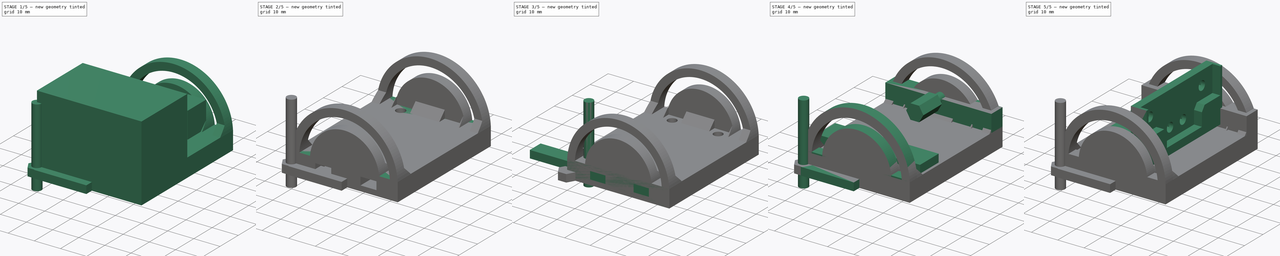
[diagram: build sequence overview — one tinted view per stage of 5, left to right]
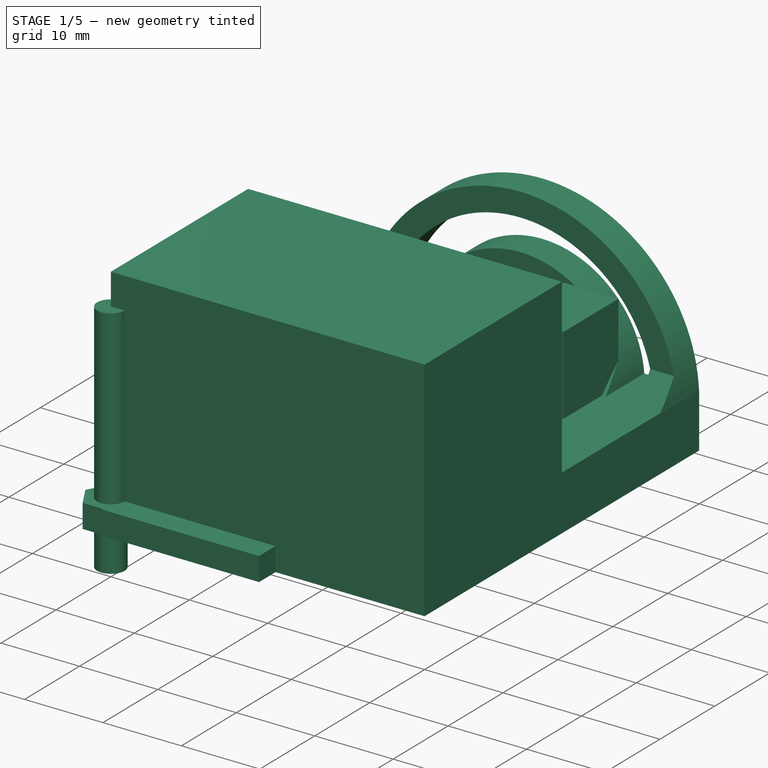
[diagram: stage 1 of 5 — iso view after this stage's code; geometry added in this stage tinted green]
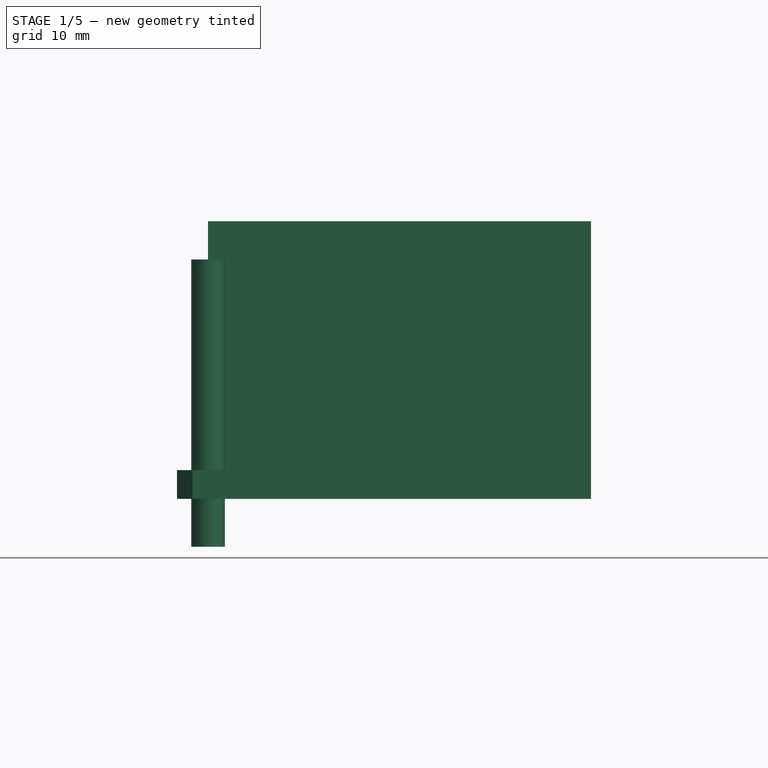
[diagram: stage 1 of 5 — front view after this stage's code; geometry added in this stage tinted green]
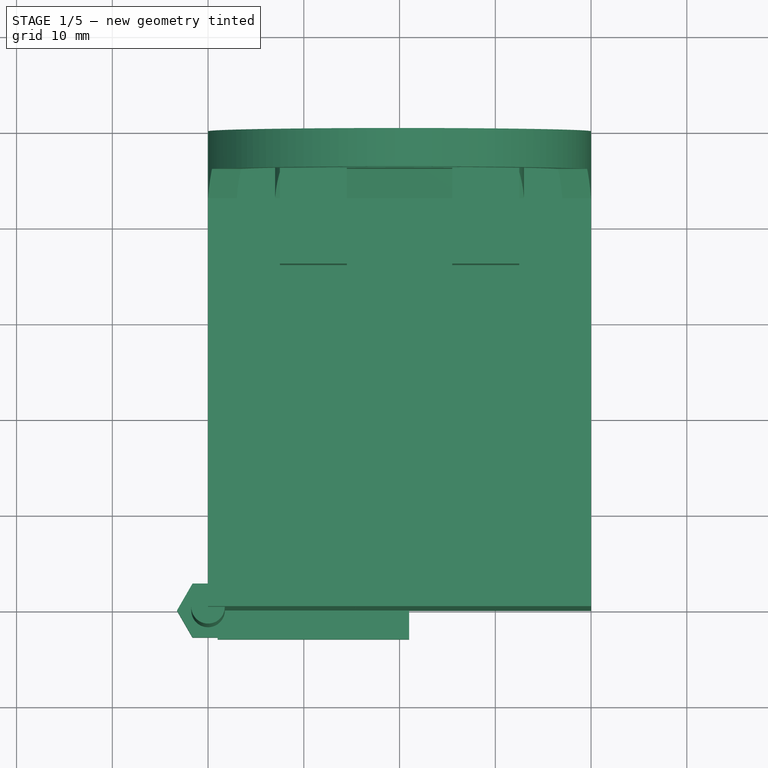
[diagram: stage 1 of 5 — top view after this stage's code; geometry added in this stage tinted green]
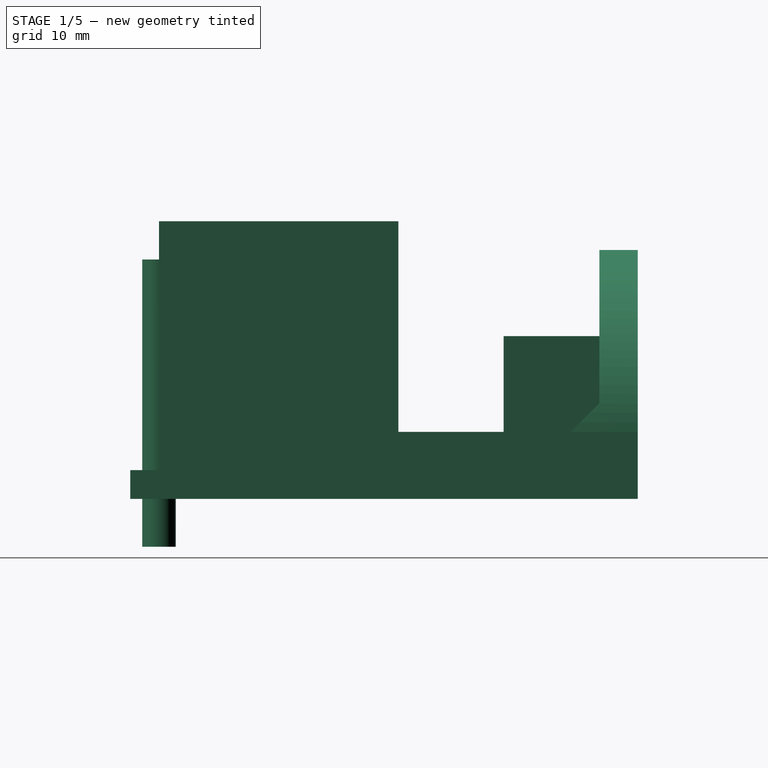
[diagram: stage 1 of 5 — right view after this stage's code; geometry added in this stage tinted green]
FCSTD DOCUMENT  (FreeCAD 0.19R14555 (Git shallow))
Label: Soporte camara
License: All rights reserved
LicenseURL: http://en.wikipedia.org/wiki/All_rights_reserved
objects: Part::Cut×36, Part::Box×30, Part::Prism×23, Part::Cylinder×23, Part::MultiFuse×21, Sketcher::SketchObject×3, PartDesign::Pad×3, PartDesign::Body×3, Part::Refine×3, App::DocumentObjectGroup×2, Part::Feature×2, PartDesign::FeatureBase×1, Part::Chamfer×1
note: 152 computed .brp shape members not serialized (recipe doc carries the construction recipe); baked Part::Feature solids carry a one-line shape summary decoded from their .brp

FEATURE [Part::Box] Box014  label="Cubo014"
  AttacherType = Attacher::AttachEngine3D
  Height = 7
  Length = 40
  Width = 50
FEATURE [Sketcher::SketchObject] Sketch002
  FullyConstrained = true
  MapMode = 5
  Placement = pos=(0,0,0) rot=(1,0,0;1.5708rad)
  Support = -> [XZ_Plane002]
  sketch-geometry (10):
    g0: LineSegment StartX=0 StartY=2.5e-15 StartZ=0 EndX=10 EndY=2.5e-15 EndZ=0
    g1: LineSegment StartX=30 StartY=-3.97921e-07 StartZ=0 EndX=40 EndY=-3.97921e-07 EndZ=0
    g2: ArcOfCircle CenterX=20 CenterY=-3.97921e-07 CenterZ=0 NormalX=0 NormalY=0 NormalZ=1 AngleXU=0 Radius=20 StartAngle=0 EndAngle=3.14159
    g3: ArcOfCircle CenterX=20 CenterY=-3.97921e-07 CenterZ=0 NormalX=0 NormalY=0 NormalZ=1 AngleXU=0 Radius=10 StartAngle=0 EndAngle=3.14159
    g4: LineSegment StartX=20 StartY=-3.97921e-07 StartZ=0 EndX=30 EndY=-3.97921e-07 EndZ=0
    g5: ArcOfCircle CenterX=20 CenterY=-3.97921e-07 CenterZ=0 NormalX=0 NormalY=0 NormalZ=1 AngleXU=0 Radius=17.0294 StartAngle=0.0587558 EndAngle=3.08284
    g6: ArcOfCircle CenterX=20 CenterY=-3.97921e-07 CenterZ=0 NormalX=0 NormalY=0 NormalZ=1 AngleXU=0 Radius=13.0384 StartAngle=0.0767719 EndAngle=3.06482
    g7: LineSegment StartX=3 StartY=1 StartZ=0 EndX=7 EndY=1 EndZ=0
    g8: LineSegment StartX=37 StartY=1 StartZ=0 EndX=33 EndY=1 EndZ=0
    g9: LineSegment StartX=20 StartY=-3.97921e-07 StartZ=0 EndX=10 EndY=2.5e-15 EndZ=0
  constraints (28):
    c: Horizontal(g1)
    c: Horizontal(g0)
    c: Equal(g0,g1)
    c: Coincident(g2,g0)
    c: Coincident(g3,g2)
    c: Coincident(g3,g0)
    c: Coincident(g3,g1)
    c: Coincident(g1,g2)
    c: Coincident(g4,g2)
    c: Coincident(g4,g1)
    c: Horizontal(g4)
    c: Coincident(g5,g2)
    c: Coincident(g6,g2)
    c: Coincident(g7,g5)
    c: Coincident(g7,g6)
    c: Coincident(g8,g5)
    c: Coincident(g8,g6)
    c: Horizontal(g8)
    c: Horizontal(g7)
    c: Equal(g7,g8)
    c: Radius(g2) = 20
    c: DistanceX(g7,g7) = 4
    c: DistanceX(g6,g0) = 3
    c: DistanceX(g4,g4) = 10
    c: DistanceY(g0,g6) = 1
    c: Coincident(g0,g-1)
    c: Coincident(g9,g2)
    c: Coincident(g9,g0)
FEATURE [PartDesign::Pad] Pad002002
  Direction = (1,1,1)
  Length = 4
  Length2 = 100
  Placement = pos=(0,0,0) rot=(1,0,0;1.5708rad)
  Profile = -> Sketch002
  Type = 0
FEATURE [PartDesign::Body] Body002
  Group = -> [Sketch002,Pad002002]
  Origin = -> Origin002
  Tip = -> Pad002002
FEATURE [Part::Refine] Pad002002001
  Placement = pos=(0,4,6) rot=(0,0,1;0rad)
  Source = -> Pad002002
FEATURE [Part::Feature] Pad002002001001
  Placement = pos=(0,50,6) rot=(0,0,1;0rad)
  shape: bbox 40 x 4 x 20 mm, 9 faces (baked)
FEATURE [Part::MultiFuse] Fusion012
  Shapes = -> [Pad002002001001,Pad002002001,Box014]
FEATURE [Part::Prism] Prism015  label="Prisma015"
  AttacherType = Attacher::AttachEngine3D
  Circumradius = 3.25
  FirstAngle = 0
  Height = 3
  Polygon = 6
  SecondAngle = 0
FEATURE [Part::Cylinder] Cylinder015  label="Cilindro015"
  Angle = 360
  AttacherType = Attacher::AttachEngine3D
  Height = 30
  Placement = pos=(0,0,-5) rot=(0,0,1;0rad)
  Radius = 1.75
FEATURE [Part::Box] Box015  label="Cubo015"
  AttacherType = Attacher::AttachEngine3D
  Height = 3
  Length = 20
  Placement = pos=(1,-3,0) rot=(0,0,1;0rad)
  Width = 6
FEATURE [Part::MultiFuse] Fusion013
  Placement = pos=(12,7,2) rot=(0,0,-1;1.5708rad)
  Shapes = -> [Prism015,Cylinder015,Box015]
FEATURE [Part::Prism] Prism016  label="Prisma016"
  AttacherType = Attacher::AttachEngine3D
  Circumradius = 3.25
  FirstAngle = 0
  Height = 3
  Polygon = 6
  SecondAngle = 0
FEATURE [Part::Box] Box016  label="Cubo016"
  AttacherType = Attacher::AttachEngine3D
  Height = 3
  Length = 20
  Placement = pos=(1,-3,0) rot=(0,0,1;0rad)
  Width = 6
FEATURE [Part::Cylinder] Cylinder016  label="Cilindro016"
  Angle = 360
  AttacherType = Attacher::AttachEngine3D
  Height = 30
  Placement = pos=(0,0,-5) rot=(0,0,1;0rad)
  Radius = 1.75
FEATURE [Part::Prism] Prism017  label="Prisma017"
  AttacherType = Attacher::AttachEngine3D
  Circumradius = 3.25
  FirstAngle = 0
  Height = 3
  Polygon = 6
  SecondAngle = 0
FEATURE [Part::Box] Box017  label="Cubo017"
  AttacherType = Attacher::AttachEngine3D
  Height = 3
  Length = 20
  Placement = pos=(1,-3,0) rot=(0,0,1;0rad)
  Width = 6
FEATURE [Part::Cylinder] Cylinder017  label="Cilindro017"
  Angle = 360
  AttacherType = Attacher::AttachEngine3D
  Height = 30
  Placement = pos=(0,0,-5) rot=(0,0,1;0rad)
  Radius = 1.75
FEATURE [Part::MultiFuse] Fusion015
  Placement = pos=(29,43,2) rot=(0,0,1;1.5708rad)
  Shapes = -> [Prism017,Cylinder017,Box017]
FEATURE [Part::Prism] Prism018  label="Prisma018"
  AttacherType = Attacher::AttachEngine3D
  Circumradius = 3.25
  FirstAngle = 0
  Height = 3
  Polygon = 6
  SecondAngle = 0
FEATURE [Part::Cylinder] Cylinder018  label="Cilindro018"
  Angle = 360
  AttacherType = Attacher::AttachEngine3D
  Height = 30
  Placement = pos=(0,0,-5) rot=(0,0,1;0rad)
  Radius = 1.75
FEATURE [Part::Box] Box018  label="Cubo018"
  AttacherType = Attacher::AttachEngine3D
  Height = 3
  Length = 20
  Placement = pos=(1,-3,0) rot=(0,0,1;0rad)
  Width = 6
FEATURE [Part::MultiFuse] Fusion016
  Placement = pos=(11,43,2) rot=(0,0,1;1.5708rad)
  Shapes = -> [Prism018,Cylinder018,Box018]
FEATURE [App::DocumentObjectGroup] Group001  label="Basura"
  Group = -> [Group,Body001,Fusion009,Cut029]
FEATURE [Part::Chamfer] Chamfer
  Base = -> Fusion012
  Edges = 6 edges r=3: [Edge41,Edge42,Edge43,Edge47,Edge49,Edge51]
FEATURE [Part::Cut] Cut022
  Base = -> Chamfer
  Tool = -> Fusion013
FEATURE [Part::Cut] Cut023
  Base = -> Cut022
  Tool = -> Fusion016
FEATURE [Part::Cut] Cut024
  Base = -> Cut023
  Tool = -> Fusion015
FEATURE [Part::Box] Box024  label="Cubo024"
  AttacherType = Attacher::AttachEngine3D
  Height = 10
  Length = 7
  Placement = pos=(8.5,4,7) rot=(0,0,1;0rad)
  Width = 10
FEATURE [Part::Box] Box026  label="Cubo026"
  AttacherType = Attacher::AttachEngine3D
  Height = 10
  Length = 7
  Placement = pos=(25.5,36,7) rot=(0,0,1;0rad)
  Width = 10
FEATURE [Part::Box] Box027  label="Cubo027"
  AttacherType = Attacher::AttachEngine3D
  Height = 10
  Length = 7
  Placement = pos=(7.5,36,7) rot=(0,0,1;0rad)
  Width = 10
FEATURE [Part::Feature] Cut033001
  shape: bbox 40 x 50 x 26 mm, 129 faces (baked)
FEATURE [Part::Box] Box028  label="Cubo028"
  AttacherType = Attacher::AttachEngine3D
  Height = 29
  Length = 40
  Width = 25
FEATURE [Part::Box] Box029  label="Cubo029"
  AttacherType = Attacher::AttachEngine3D
  Height = 27
  Length = 40
  Placement = pos=(0,25,0) rot=(0,0,1;0rad)
  Width = 25
FEATURE [Part::Cut] Cut033003
  Base = -> Cut033001
  Tool = -> Box029
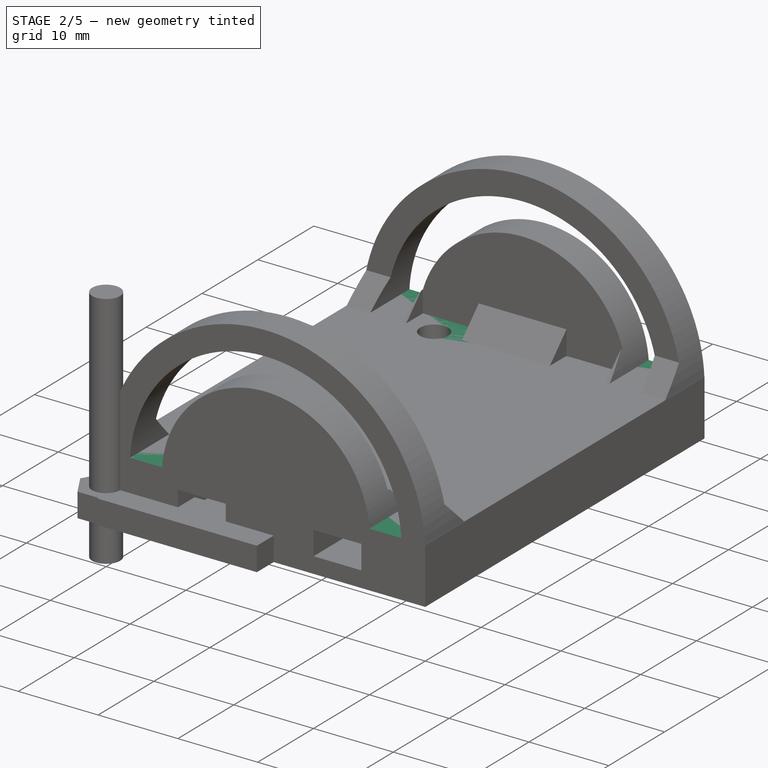
[diagram: stage 2 of 5 — iso view after this stage's code; geometry added in this stage tinted green]
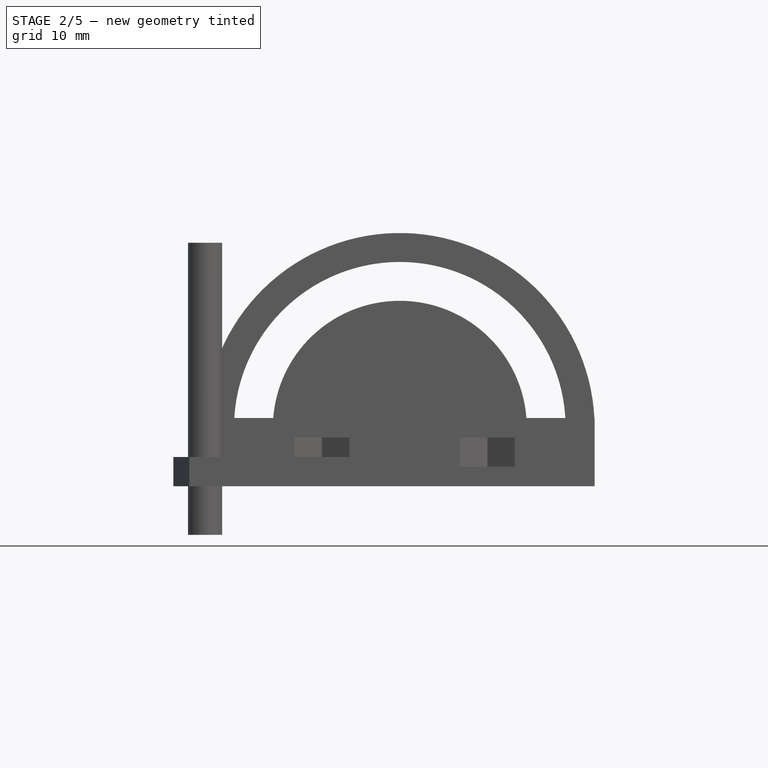
[diagram: stage 2 of 5 — front view after this stage's code; geometry added in this stage tinted green]
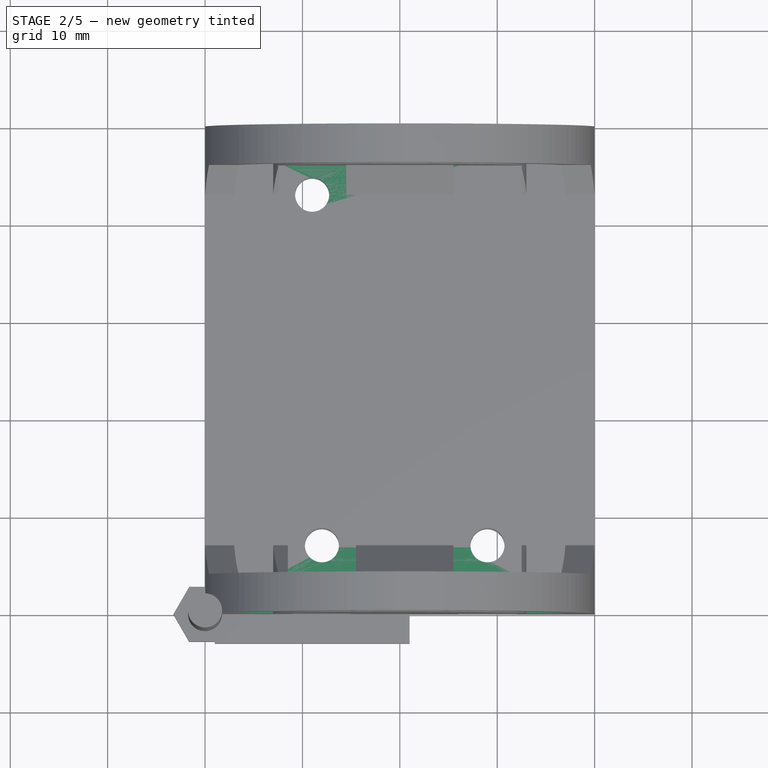
[diagram: stage 2 of 5 — top view after this stage's code; geometry added in this stage tinted green]
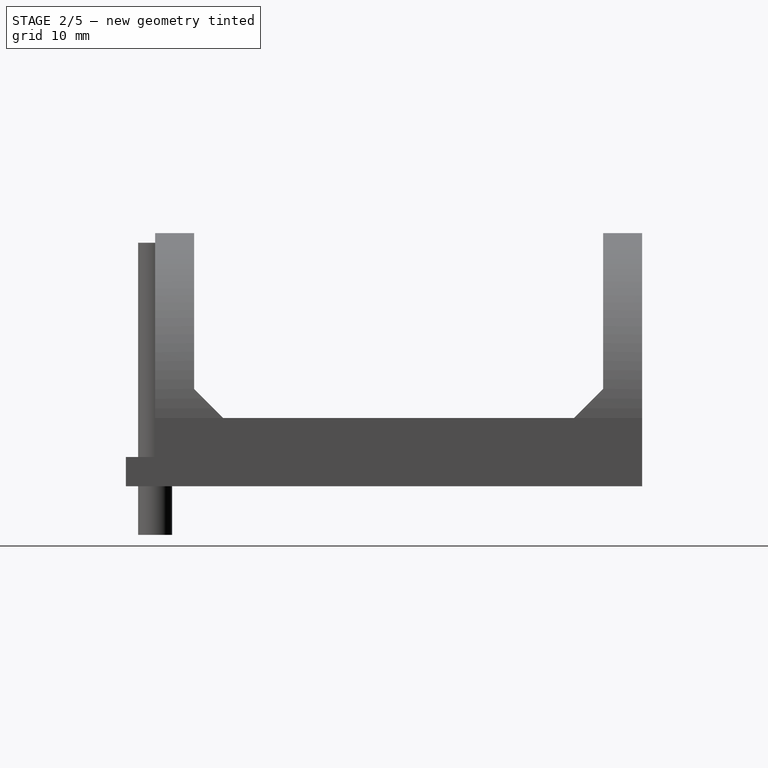
[diagram: stage 2 of 5 — right view after this stage's code; geometry added in this stage tinted green]
FEATURE [Part::MultiFuse] Fusion014
  Placement = pos=(29,7,2) rot=(0,0,-1;1.5708rad)
  Shapes = -> [Prism016,Cylinder016,Box016]
FEATURE [Part::Box] Box019  label="Cubo019"
  AttacherType = Attacher::AttachEngine3D
  Height = 7
  Length = 40
  Width = 50
FEATURE [Part::Prism] Prism019  label="Prisma019"
  AttacherType = Attacher::AttachEngine3D
  Circumradius = 3.25
  FirstAngle = 0
  Height = 3
  Polygon = 6
  SecondAngle = 0
FEATURE [Part::Prism] Prism020  label="Prisma020"
  AttacherType = Attacher::AttachEngine3D
  Circumradius = 3.25
  FirstAngle = 0
  Height = 3
  Polygon = 6
  SecondAngle = 0
FEATURE [Part::Prism] Prism021  label="Prisma021"
  AttacherType = Attacher::AttachEngine3D
  Circumradius = 3.25
  FirstAngle = 0
  Height = 3
  Polygon = 6
  SecondAngle = 0
FEATURE [Part::Box] Box020  label="Cubo020"
  AttacherType = Attacher::AttachEngine3D
  Height = 3
  Length = 20
  Placement = pos=(1,-3,0) rot=(0,0,1;0rad)
  Width = 6
FEATURE [Part::Cylinder] Cylinder019  label="Cilindro019"
  Angle = 360
  AttacherType = Attacher::AttachEngine3D
  Height = 30
  Placement = pos=(0,0,-5) rot=(0,0,1;0rad)
  Radius = 1.75
FEATURE [Part::Prism] Prism022  label="Prisma022"
  AttacherType = Attacher::AttachEngine3D
  Circumradius = 3.25
  FirstAngle = 0
  Height = 3
  Polygon = 6
  SecondAngle = 0
FEATURE [Part::Box] Box021  label="Cubo021"
  AttacherType = Attacher::AttachEngine3D
  Height = 3
  Length = 20
  Placement = pos=(1,-3,0) rot=(0,0,1;0rad)
  Width = 6
FEATURE [Part::Cylinder] Cylinder020  label="Cilindro020"
  Angle = 360
  AttacherType = Attacher::AttachEngine3D
  Height = 30
  Placement = pos=(0,0,-5) rot=(0,0,1;0rad)
  Radius = 1.75
FEATURE [Part::Cylinder] Cylinder021  label="Cilindro021"
  Angle = 360
  AttacherType = Attacher::AttachEngine3D
  Height = 30
  Placement = pos=(0,0,-5) rot=(0,0,1;0rad)
  Radius = 1.75
FEATURE [Part::Cylinder] Cylinder022  label="Cilindro022"
  Angle = 360
  AttacherType = Attacher::AttachEngine3D
  Height = 30
  Placement = pos=(0,0,-5) rot=(0,0,1;0rad)
  Radius = 1.75
FEATURE [Part::Box] Box022  label="Cubo022"
  AttacherType = Attacher::AttachEngine3D
  Height = 3
  Length = 20
  Placement = pos=(1,-3,0) rot=(0,0,1;0rad)
  Width = 6
FEATURE [Part::MultiFuse] Fusion017
  Placement = pos=(11,43,2) rot=(0,0,1;1.5708rad)
  Shapes = -> [Prism020,Cylinder020,Box022]
FEATURE [Part::MultiFuse] Fusion019
  Placement = pos=(29,7,2) rot=(0,0,-1;1.5708rad)
  Shapes = -> [Prism019,Cylinder019,Box020]
FEATURE [Part::MultiFuse] Fusion020
  Placement = pos=(12,7,2) rot=(0,0,-1;1.5708rad)
  Shapes = -> [Prism022,Cylinder022,Box021]
FEATURE [Part::Box] Box023  label="Cubo023"
  AttacherType = Attacher::AttachEngine3D
  Height = 3
  Length = 20
  Placement = pos=(1,-3,0) rot=(0,0,1;0rad)
  Width = 6
FEATURE [Part::Cut] Cut026
  Base = -> Box019
  Tool = -> Fusion017
FEATURE [Part::Cut] Cut027
  Base = -> Cut026
  Tool = -> Fusion020
FEATURE [Part::Cut] Cut028
  Base = -> Cut027
  Tool = -> Fusion019
FEATURE [Part::Cut] Cut025
  Base = -> Cut024
  Tool = -> Fusion014
FEATURE [Part::Box] Box025  label="Cubo025"
  AttacherType = Attacher::AttachEngine3D
  Height = 10
  Length = 7
  Placement = pos=(25.5,4,7) rot=(0,0,1;0rad)
  Width = 10
FEATURE [Part::Cut] Cut030
  Base = -> Cut025
  Tool = -> Box024
FEATURE [Part::Cut] Cut031
  Base = -> Cut030
  Tool = -> Box025
FEATURE [Part::Cut] Cut032
  Base = -> Cut031
  Tool = -> Box026
FEATURE [Part::Cut] Cut033
  Base = -> Cut032
  Tool = -> Box027
FEATURE [Part::Cut] Cut033002
  Base = -> Cut033
  Tool = -> Box028
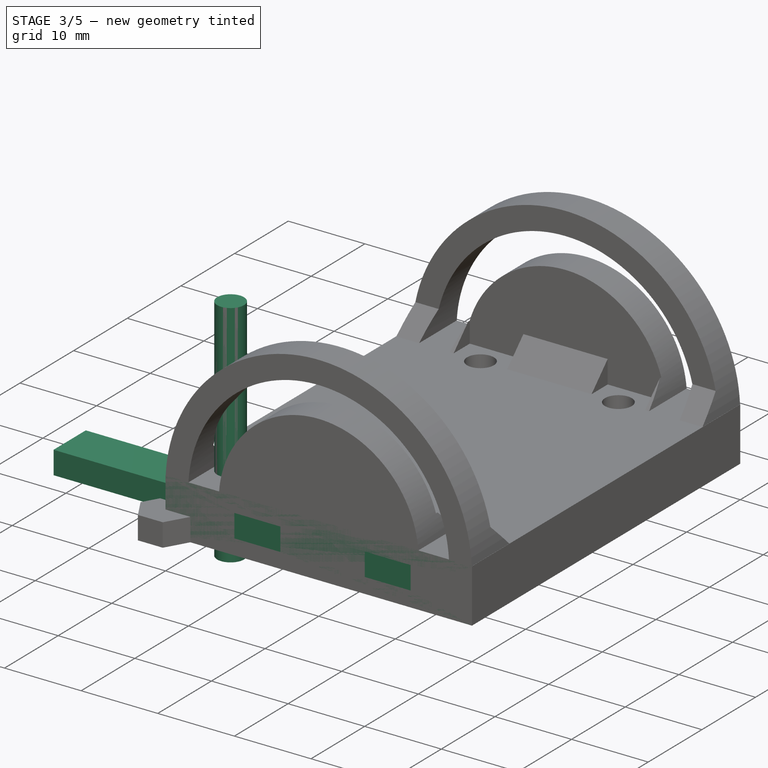
[diagram: stage 3 of 5 — iso view after this stage's code; geometry added in this stage tinted green]
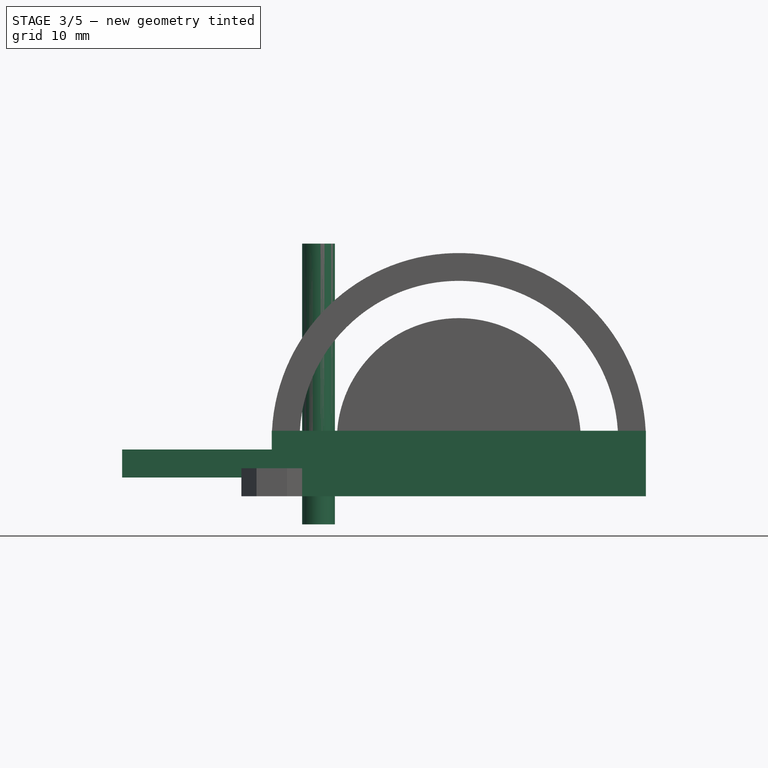
[diagram: stage 3 of 5 — front view after this stage's code; geometry added in this stage tinted green]
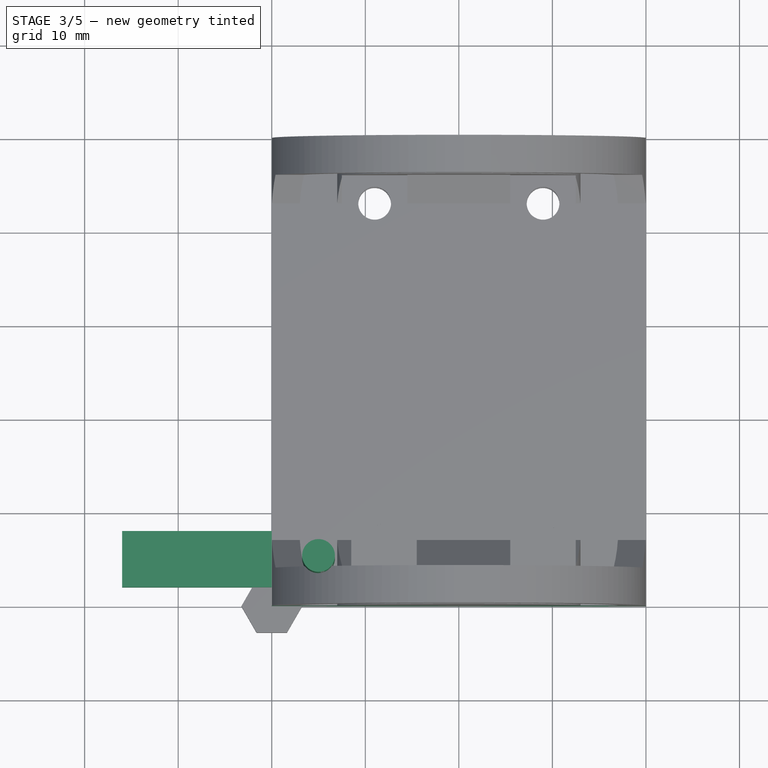
[diagram: stage 3 of 5 — top view after this stage's code; geometry added in this stage tinted green]
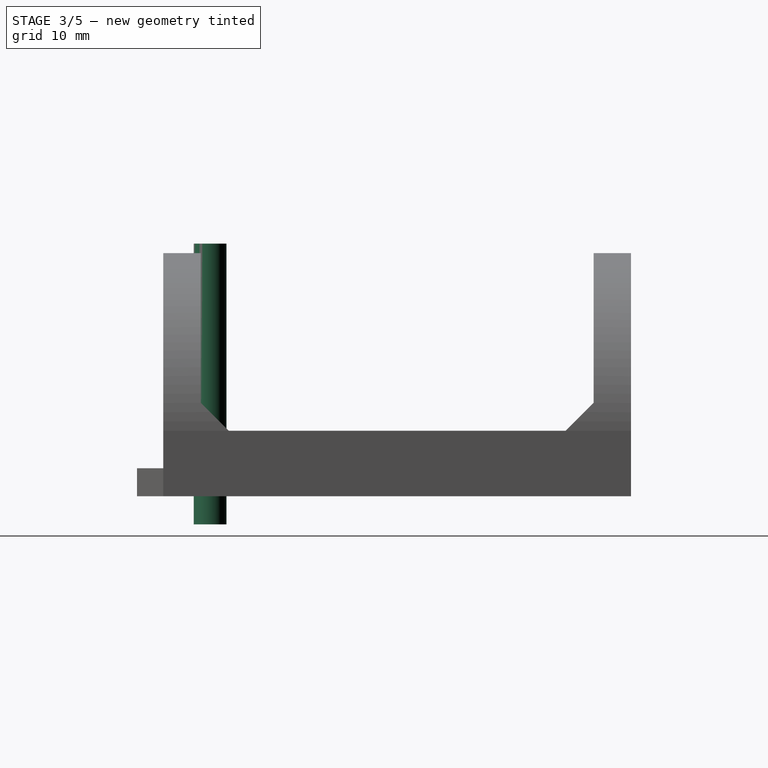
[diagram: stage 3 of 5 — right view after this stage's code; geometry added in this stage tinted green]
FEATURE [Part::Prism] Prism001  label="Prisma001"
  AttacherType = Attacher::AttachEngine3D
  Circumradius = 3.25
  FirstAngle = 0
  Height = 3
  Polygon = 6
  SecondAngle = 0
FEATURE [Part::Cylinder] Cylinder003  label="Cilindro003"
  Angle = 360
  AttacherType = Attacher::AttachEngine3D
  Height = 30
  Placement = pos=(0,0,-5) rot=(0,0,1;0rad)
  Radius = 1.75
FEATURE [Part::Box] Box004  label="Cubo004"
  AttacherType = Attacher::AttachEngine3D
  Height = 3
  Length = 20
  Placement = pos=(1,-3,0) rot=(0,0,1;0rad)
  Width = 6
FEATURE [Part::Prism] Prism003  label="Prisma003"
  AttacherType = Attacher::AttachEngine3D
  Circumradius = 3.25
  FirstAngle = 0
  Height = 3
  Polygon = 6
  SecondAngle = 0
FEATURE [Part::MultiFuse] Fusion003
  Placement = pos=(5,5,2) rot=(0,0,1;3.14159rad)
  Shapes = -> [Prism003,Cylinder003,Box004]
FEATURE [PartDesign::Body] Body
  BaseFeature = -> Cut003
  Group = -> [BaseFeature,Sketch,Pad]
  Origin = -> Origin
  Tip = -> Pad
FEATURE [Part::Refine] Pad001
  Source = -> Pad
FEATURE [Part::Box] Box006  label="Cubo006"
  AttacherType = Attacher::AttachEngine3D
  Height = 7
  Length = 40
  Width = 40
FEATURE [Part::Box] Box007  label="Cubo007"
  AttacherType = Attacher::AttachEngine3D
  Height = 3
  Length = 20
  Placement = pos=(1,-3,0) rot=(0,0,1;0rad)
  Width = 6
FEATURE [Part::Cylinder] Cylinder005  label="Cilindro005"
  Angle = 360
  AttacherType = Attacher::AttachEngine3D
  Height = 30
  Placement = pos=(0,0,-5) rot=(0,0,1;0rad)
  Radius = 1.75
FEATURE [Part::Prism] Prism005  label="Prisma005"
  AttacherType = Attacher::AttachEngine3D
  Circumradius = 3.25
  FirstAngle = 0
  Height = 3
  Polygon = 6
  SecondAngle = 0
FEATURE [Part::MultiFuse] Fusion005
  Placement = pos=(5,35,2) rot=(0,0,1;3.14159rad)
  Shapes = -> [Prism005,Cylinder005,Box007]
FEATURE [Part::Box] Box008  label="Cubo008"
  AttacherType = Attacher::AttachEngine3D
  Height = 3
  Length = 20
  Placement = pos=(1,-3,0) rot=(0,0,1;0rad)
  Width = 6
FEATURE [Part::Cylinder] Cylinder006  label="Cilindro006"
  Angle = 360
  AttacherType = Attacher::AttachEngine3D
  Height = 30
  Placement = pos=(0,0,-5) rot=(0,0,1;0rad)
  Radius = 1.75
FEATURE [Part::Cylinder] Cylinder007  label="Cilindro007"
  Angle = 360
  AttacherType = Attacher::AttachEngine3D
  Height = 30
  Placement = pos=(0,0,-5) rot=(0,0,1;0rad)
  Radius = 1.75
FEATURE [Part::Prism] Prism006  label="Prisma006"
  AttacherType = Attacher::AttachEngine3D
  Circumradius = 3.25
  FirstAngle = 0
  Height = 3
  Polygon = 6
  SecondAngle = 0
FEATURE [Part::Box] Box009  label="Cubo009"
  AttacherType = Attacher::AttachEngine3D
  Height = 3
  Length = 20
  Placement = pos=(1,-3,0) rot=(0,0,1;0rad)
  Width = 6
FEATURE [Part::Prism] Prism007  label="Prisma007"
  AttacherType = Attacher::AttachEngine3D
  Circumradius = 3.25
  FirstAngle = 0
  Height = 3
  Polygon = 6
  SecondAngle = 0
FEATURE [Part::Box] Box010  label="Cubo010"
  AttacherType = Attacher::AttachEngine3D
  Height = 3
  Length = 20
  Placement = pos=(1,-3,0) rot=(0,0,1;0rad)
  Width = 6
FEATURE [Part::MultiFuse] Fusion007
  Placement = pos=(35,5,2) rot=(0,0,1;0rad)
  Shapes = -> [Prism007,Cylinder007,Box010]
FEATURE [Part::Cut] Cut005
  Base = -> Box006
  Tool = -> Fusion007
FEATURE [Part::Prism] Prism008  label="Prisma008"
  AttacherType = Attacher::AttachEngine3D
  Circumradius = 3.25
  FirstAngle = 0
  Height = 3
  Polygon = 6
  SecondAngle = 0
FEATURE [Part::Cylinder] Cylinder008  label="Cilindro008"
  Angle = 360
  AttacherType = Attacher::AttachEngine3D
  Height = 30
  Placement = pos=(0,0,-5) rot=(0,0,1;0rad)
  Radius = 1.75
FEATURE [Part::MultiFuse] Fusion006
  Placement = pos=(5,5,2) rot=(0,0,1;3.14159rad)
  Shapes = -> [Prism008,Cylinder008,Box008]
FEATURE [Part::MultiFuse] Fusion008
  Placement = pos=(35,35,2) rot=(0,0,1;0rad)
  Shapes = -> [Prism006,Cylinder006,Box009]
FEATURE [Part::Cut] Cut006
  Base = -> Cut005
  Tool = -> Fusion008
FEATURE [Part::Cut] Cut004
  Base = -> Cut006
  Tool = -> Fusion006
FEATURE [Part::Cut] Cut007
  Base = -> Cut004
  Tool = -> Fusion005
FEATURE [Part::MultiFuse] Fusion018
  Placement = pos=(29,43,2) rot=(0,0,1;1.5708rad)
  Shapes = -> [Prism021,Cylinder021,Box023]
FEATURE [Part::Cut] Cut029
  Base = -> Cut028
  Tool = -> Fusion018
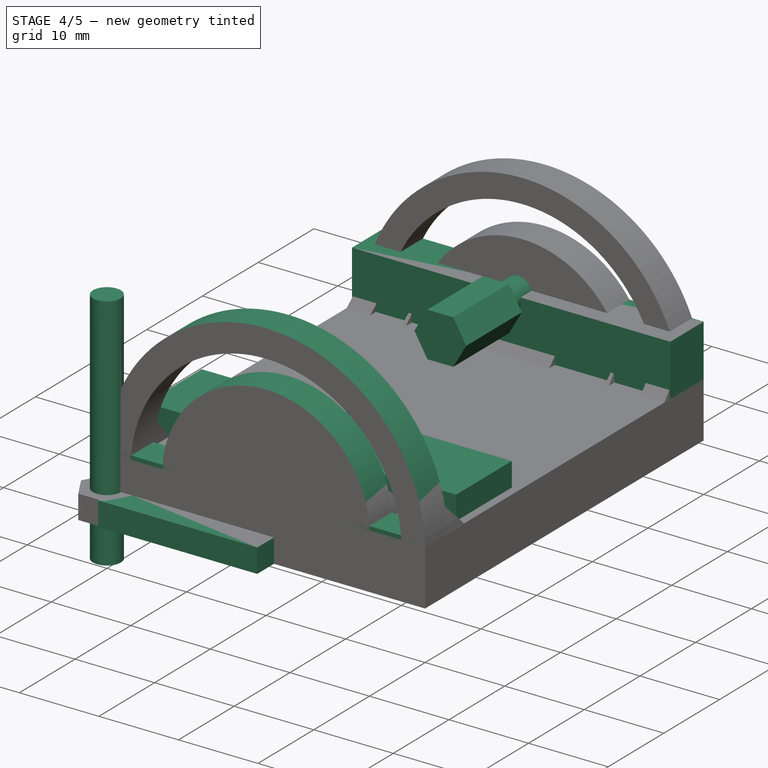
[diagram: stage 4 of 5 — iso view after this stage's code; geometry added in this stage tinted green]
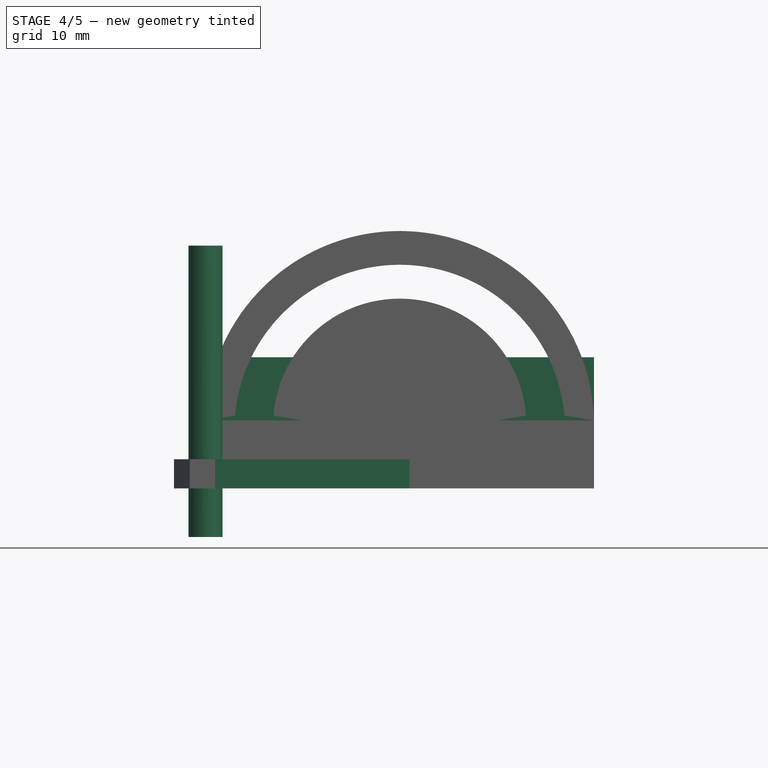
[diagram: stage 4 of 5 — front view after this stage's code; geometry added in this stage tinted green]
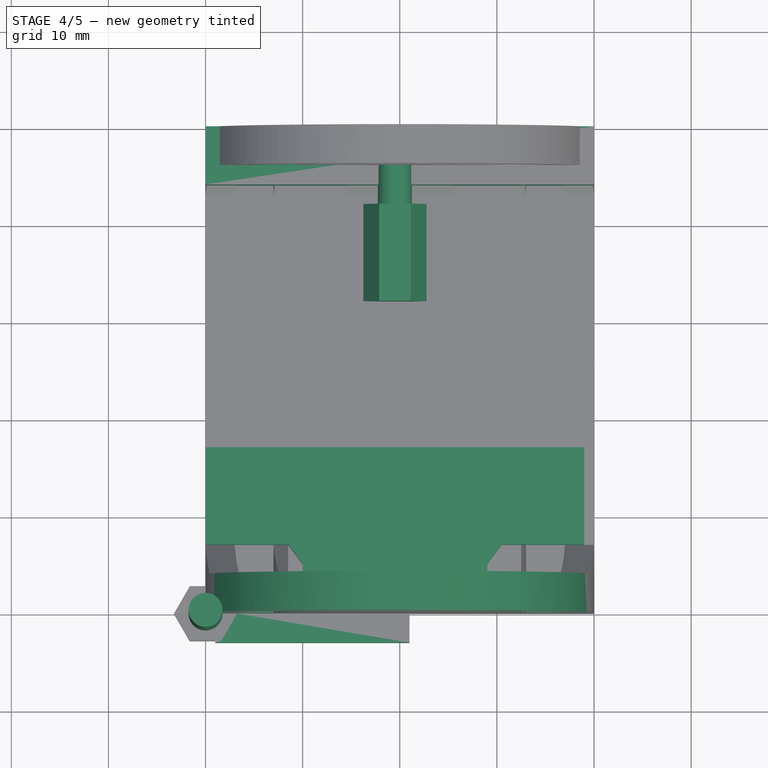
[diagram: stage 4 of 5 — top view after this stage's code; geometry added in this stage tinted green]
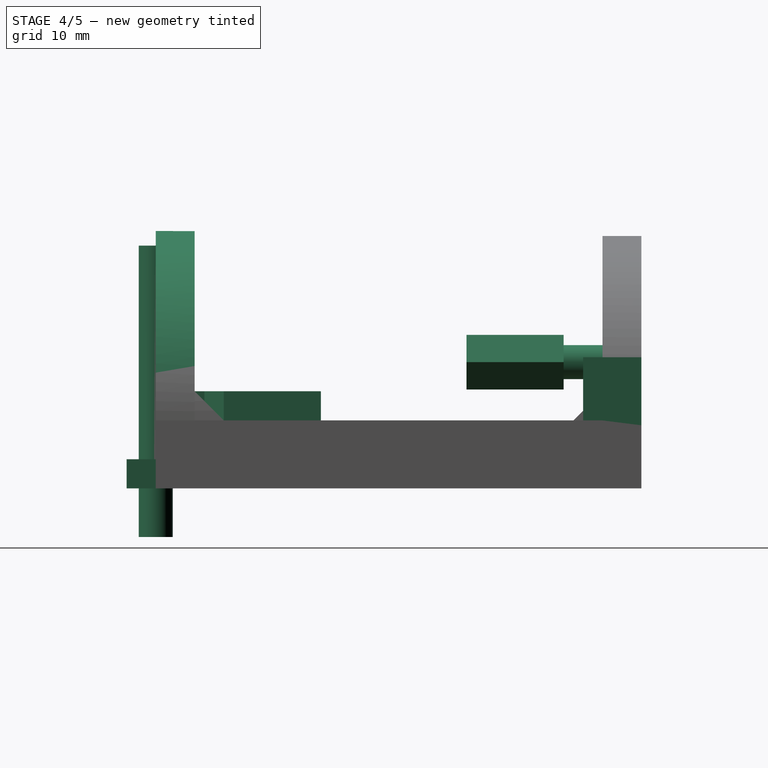
[diagram: stage 4 of 5 — right view after this stage's code; geometry added in this stage tinted green]
FEATURE [Part::Box] Box  label="Cubo"
  AttacherType = Attacher::AttachEngine3D
  Height = 7
  Length = 40
  Width = 46
FEATURE [Part::Prism] Prism  label="Prisma"
  AttacherType = Attacher::AttachEngine3D
  Circumradius = 3.25
  FirstAngle = 0
  Height = 3
  Polygon = 6
  SecondAngle = 0
FEATURE [Part::Cylinder] Cylinder  label="Cilindro"
  Angle = 360
  AttacherType = Attacher::AttachEngine3D
  Height = 30
  Placement = pos=(0,0,-5) rot=(0,0,1;0rad)
  Radius = 1.75
FEATURE [Part::Box] Box001  label="Cubo001"
  AttacherType = Attacher::AttachEngine3D
  Height = 3
  Length = 20
  Placement = pos=(1,-3,0) rot=(0,0,1;0rad)
  Width = 6
FEATURE [Part::MultiFuse] Fusion
  Shapes = -> [Prism,Cylinder,Box001]
FEATURE [Part::Cylinder] Cylinder001  label="Cilindro001"
  Angle = 360
  AttacherType = Attacher::AttachEngine3D
  Height = 30
  Placement = pos=(0,0,-5) rot=(0,0,1;0rad)
  Radius = 1.75
FEATURE [Part::Box] Box002  label="Cubo002"
  AttacherType = Attacher::AttachEngine3D
  Height = 3
  Length = 20
  Placement = pos=(1,-3,0) rot=(0,0,1;0rad)
  Width = 6
FEATURE [Part::MultiFuse] Fusion001
  Placement = pos=(35,5,2) rot=(0,0,1;0rad)
  Shapes = -> [Prism001,Cylinder001,Box002]
FEATURE [Part::Cylinder] Cylinder002  label="Cilindro002"
  Angle = 360
  AttacherType = Attacher::AttachEngine3D
  Height = 30
  Placement = pos=(0,0,-5) rot=(0,0,1;0rad)
  Radius = 1.75
FEATURE [Part::Prism] Prism002  label="Prisma002"
  AttacherType = Attacher::AttachEngine3D
  Circumradius = 3.25
  FirstAngle = 0
  Height = 3
  Polygon = 6
  SecondAngle = 0
FEATURE [Part::Box] Box003  label="Cubo003"
  AttacherType = Attacher::AttachEngine3D
  Height = 3
  Length = 20
  Placement = pos=(1,-3,0) rot=(0,0,1;0rad)
  Width = 6
FEATURE [Part::MultiFuse] Fusion002
  Placement = pos=(35,35,2) rot=(0,0,1;0rad)
  Shapes = -> [Prism002,Cylinder002,Box003]
FEATURE [Part::Cut] Cut
  Base = -> Box
  Tool = -> Fusion001
FEATURE [Part::Cut] Cut001
  Base = -> Cut
  Tool = -> Fusion002
FEATURE [Part::Box] Box005  label="Cubo005"
  AttacherType = Attacher::AttachEngine3D
  Height = 3
  Length = 20
  Placement = pos=(1,-3,0) rot=(0,0,1;0rad)
  Width = 6
FEATURE [Part::Prism] Prism004  label="Prisma004"
  AttacherType = Attacher::AttachEngine3D
  Circumradius = 3.25
  FirstAngle = 0
  Height = 3
  Polygon = 6
  SecondAngle = 0
FEATURE [Part::Cylinder] Cylinder004  label="Cilindro004"
  Angle = 360
  AttacherType = Attacher::AttachEngine3D
  Height = 30
  Placement = pos=(0,0,-5) rot=(0,0,1;0rad)
  Radius = 1.75
FEATURE [Part::MultiFuse] Fusion004
  Placement = pos=(5,35,2) rot=(0,0,1;3.14159rad)
  Shapes = -> [Prism004,Cylinder004,Box005]
FEATURE [Part::Cut] Cut002
  Base = -> Cut001
  Tool = -> Fusion003
FEATURE [Part::Cut] Cut003
  Base = -> Cut002
  Tool = -> Fusion004
FEATURE [PartDesign::FeatureBase] BaseFeature
  BaseFeature = -> Cut003
FEATURE [Sketcher::SketchObject] Sketch
  FullyConstrained = true
  MapMode = 5
  Placement = pos=(0,0,0) rot=(1,0,0;1.5708rad)
  Support = -> [XZ_Plane]
  sketch-geometry (9):
    g0: LineSegment StartX=1.93907e-11 StartY=1e-16 StartZ=0 EndX=10 EndY=1e-16 EndZ=0
    g1: LineSegment StartX=30 StartY=-2.78502e-05 StartZ=0 EndX=40 EndY=-2.78502e-05 EndZ=0
    g2: ArcOfCircle CenterX=20 CenterY=-2.78502e-05 CenterZ=0 NormalX=0 NormalY=0 NormalZ=1 AngleXU=0 Radius=20 StartAngle=0 EndAngle=3.14159
    g3: ArcOfCircle CenterX=20 CenterY=-2.78502e-05 CenterZ=0 NormalX=0 NormalY=0 NormalZ=1 AngleXU=0 Radius=10 StartAngle=0 EndAngle=3.14159
    g4: LineSegment StartX=20 StartY=-2.78502e-05 StartZ=0 EndX=30 EndY=-2.78502e-05 EndZ=0
    g5: ArcOfCircle CenterX=20 CenterY=-2.78502e-05 CenterZ=0 NormalX=0 NormalY=0 NormalZ=1 AngleXU=0 Radius=17.0294 StartAngle=0.0587575 EndAngle=3.08284
    g6: ArcOfCircle CenterX=20 CenterY=-2.78502e-05 CenterZ=0 NormalX=0 NormalY=0 NormalZ=1 AngleXU=0 Radius=13.0384 StartAngle=0.076774 EndAngle=3.06482
    g7: LineSegment StartX=3 StartY=1 StartZ=0 EndX=7 EndY=1 EndZ=0
    g8: LineSegment StartX=37 StartY=1 StartZ=0 EndX=33 EndY=1 EndZ=0
  constraints (26):
    c: Horizontal(g1)
    c: Horizontal(g0)
    c: Equal(g0,g1)
    c: Coincident(g2,g0)
    c: Coincident(g3,g2)
    c: Coincident(g3,g0)
    c: Coincident(g3,g1)
    c: Coincident(g1,g2)
    c: Coincident(g4,g2)
    c: Coincident(g4,g1)
    c: Horizontal(g4)
    c: Coincident(g5,g2)
    c: Coincident(g6,g2)
    c: Coincident(g7,g5)
    c: Coincident(g7,g6)
    c: Coincident(g8,g5)
    c: Coincident(g8,g6)
    c: Horizontal(g8)
    c: Horizontal(g7)
    c: Equal(g7,g8)
    c: Radius(g2) = 20
    c: DistanceX(g7,g7) = 4
    c: DistanceX(g6,g0) = 3
    c: DistanceX(g4,g4) = 10
    c: DistanceY(g0,g6) = 1
    c: Coincident(g0,g-1)
FEATURE [PartDesign::Pad] Pad
  BaseFeature = -> BaseFeature
  Direction = (1,1,1)
  Length = 4
  Length2 = 100
  Profile = -> Sketch
  Type = 0
FEATURE [Part::Cut] Cut008  label="aRCO"
  Base = -> Pad001
  Placement = pos=(0,4,6.5) rot=(0,0,1;0rad)
  Tool = -> Cut007
FEATURE [App::DocumentObjectGroup] Group  label="Base"
  Group = -> [Fusion,Body]
FEATURE [Sketcher::SketchObject] Sketch001
  FullyConstrained = true
  MapMode = 5
  Support = -> [XY_Plane001]
  sketch-geometry (10):
    g0: LineSegment StartX=10 StartY=0 StartZ=0 EndX=29 EndY=0 EndZ=0
    g1: LineSegment StartX=29 StartY=0 StartZ=0 EndX=29 EndY=5 EndZ=0
    g2: LineSegment StartX=10 StartY=0 StartZ=0 EndX=10 EndY=5 EndZ=0
    g3: LineSegment StartX=29 StartY=5 StartZ=0 EndX=30.5 EndY=7 EndZ=0
    g4: LineSegment StartX=30.5 StartY=7 StartZ=0 EndX=39 EndY=7 EndZ=0
    g5: LineSegment StartX=8.5 StartY=7 StartZ=0 EndX=0 EndY=7 EndZ=0
    g6: LineSegment StartX=39 StartY=7 StartZ=0 EndX=39 EndY=17 EndZ=0
    g7: LineSegment StartX=0 StartY=7 StartZ=0 EndX=0 EndY=17 EndZ=0
    g8: LineSegment StartX=10 StartY=5 StartZ=0 EndX=8.5 EndY=7 EndZ=0
    g9: LineSegment StartX=0 StartY=17 StartZ=0 EndX=39 EndY=17 EndZ=0
  constraints (30):
    c: Horizontal(g0)
    c: Vertical(g1)
    c: Vertical(g2)
    c: Horizontal(g4)
    c: Horizontal(g5)
    c: Vertical(g6)
    c: Vertical(g7)
    c: Coincident(g0,g2)
    c: Coincident(g1,g0)
    c: Coincident(g1,g3)
    c: Coincident(g3,g4)
    c: Coincident(g4,g6)
    c: Coincident(g8,g2)
    c: Coincident(g8,g5)
    c: Coincident(g5,g7)
    c: Coincident(g9,g7)
    c: Coincident(g9,g6)
    c: Horizontal(g9)
    c: Equal(g6,g7)
    c: Equal(g5,g4)
    c: Equal(g1,g2)
    c: Equal(g3,g8)
    c: DistanceX(g0,g0) = 19
    c: DistanceX(g9,g9) = 39
    c: DistanceY(g2,g2) = 5
    c: DistanceX(g5,g5) = 8.5
    c: DistanceY(g3,g3) = 2
    c: DistanceY(g6,g6) = 10
    c: PointOnObject(g5,g-2)
    c: PointOnObject(g0,g-1)
FEATURE [PartDesign::Pad] Pad002
  Direction = (1,1,1)
  Length = 10
  Length2 = 100
  Profile = -> Sketch001
  Type = 0
FEATURE [Part::MultiFuse] Fusion009  label="Base2"
  Shapes = -> [Cut003,Cut008]
FEATURE [Part::Prism] Prism014  label="Prisma014"
  AttacherType = Attacher::AttachEngine3D
  Circumradius = 3.25
  FirstAngle = 0
  Height = 10
  Placement = pos=(19.5,42,13) rot=(1,0,0;1.5708rad)
  Polygon = 6
  SecondAngle = 0
FEATURE [Part::Cylinder] Cylinder014  label="Cilindro014"
  Angle = 360
  AttacherType = Attacher::AttachEngine3D
  Height = 10
  Placement = pos=(19.5,49,13) rot=(1,0,0;1.5708rad)
  Radius = 1.75
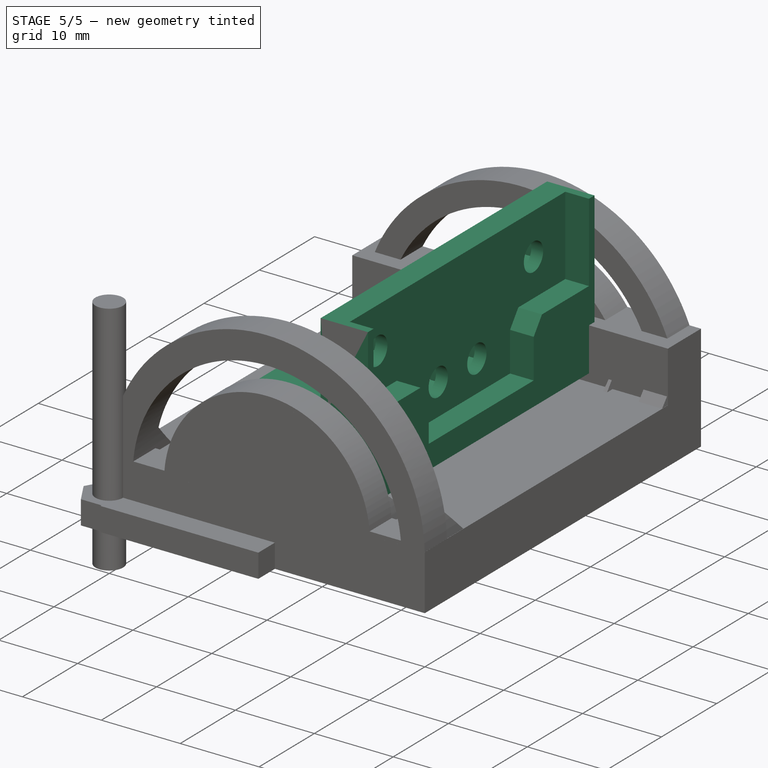
[diagram: stage 5 of 5 — iso view after this stage's code; geometry added in this stage tinted green]
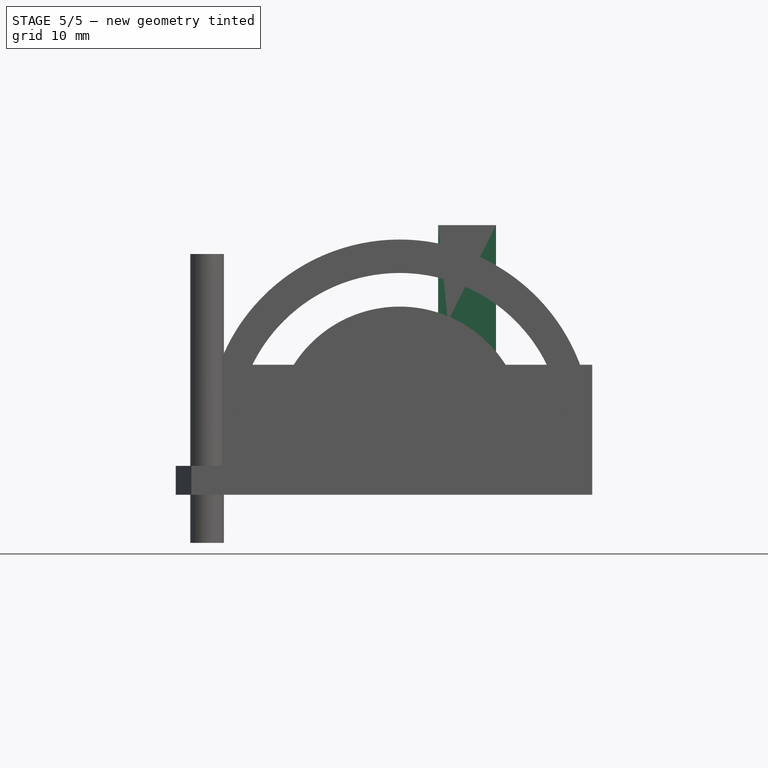
[diagram: stage 5 of 5 — front view after this stage's code; geometry added in this stage tinted green]
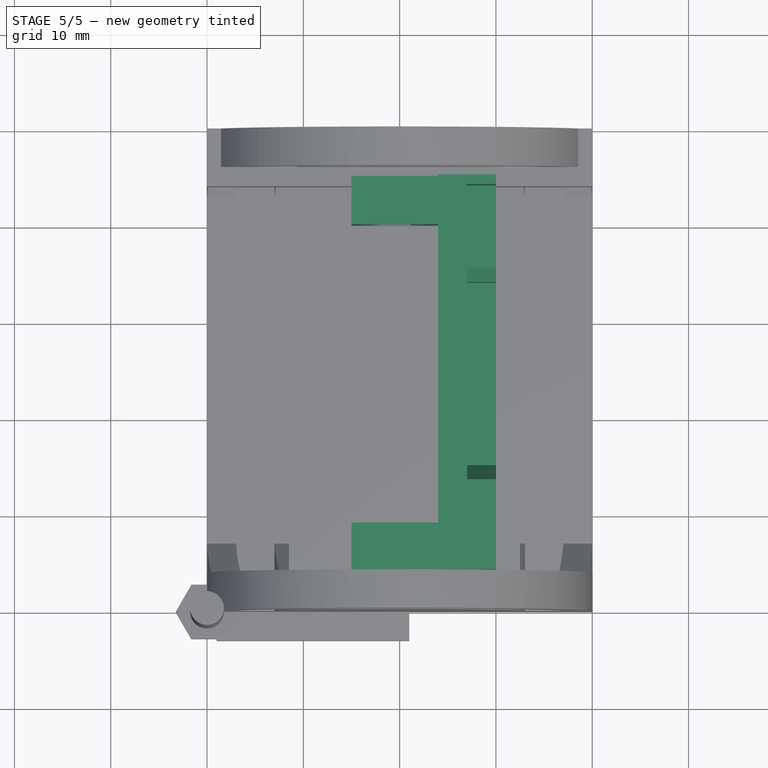
[diagram: stage 5 of 5 — top view after this stage's code; geometry added in this stage tinted green]
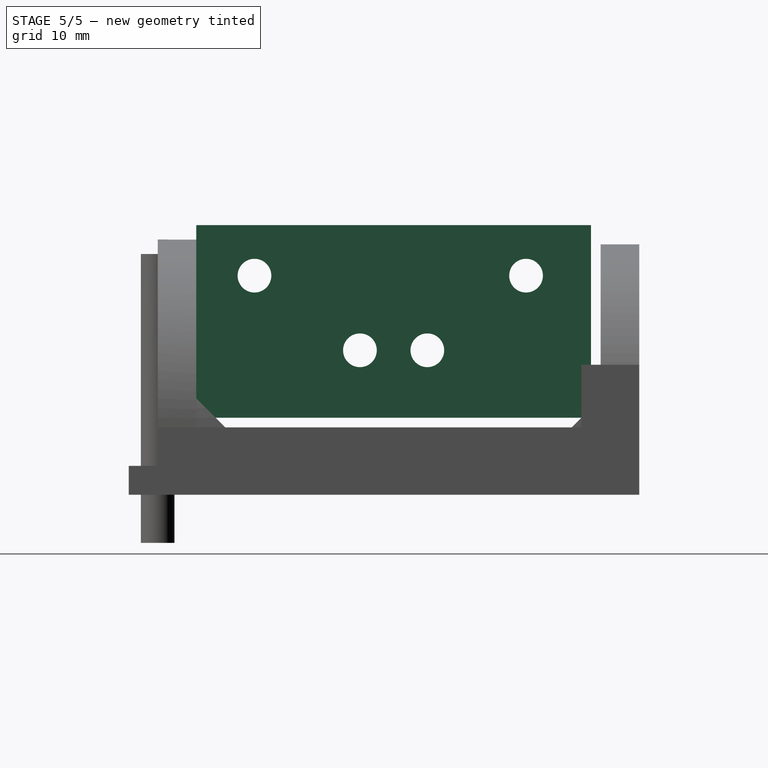
[diagram: stage 5 of 5 — right view after this stage's code; geometry added in this stage tinted green]
FEATURE [PartDesign::Body] Body001
  Group = -> [Sketch001,Pad002]
  Origin = -> Origin001
  Tip = -> Pad002
FEATURE [Part::Refine] Pad002001
  Placement = pos=(1,3,3) rot=(0,0,1;0rad)
  Source = -> Pad002
FEATURE [Part::Box] Box011  label="Cubo011"
  AttacherType = Attacher::AttachEngine3D
  Height = 6
  Length = 41
  Width = 20
FEATURE [Part::Cut] Cut009
  Base = -> Box011
  Tool = -> Pad002001
FEATURE [Part::Cylinder] Cylinder009  label="Cilindro009"
  Angle = 360
  AttacherType = Attacher::AttachEngine3D
  Height = 10
  Placement = pos=(34.25,14.75,-2) rot=(0,0,1;0rad)
  Radius = 1.75
FEATURE [Part::Cylinder] Cylinder010  label="Cilindro010"
  Angle = 360
  AttacherType = Attacher::AttachEngine3D
  Height = 10
  Placement = pos=(17,7,-3) rot=(0,0,1;0rad)
  Radius = 1.75
FEATURE [Part::Cylinder] Cylinder011  label="Cilindro011"
  Angle = 360
  AttacherType = Attacher::AttachEngine3D
  Height = 10
  Placement = pos=(6.05,14.75,-2) rot=(0,0,1;0rad)
  Radius = 1.75
FEATURE [Part::Cut] Cut010
  Base = -> Cut009
  Tool = -> Cylinder009
FEATURE [Part::Cut] Cut011
  Base = -> Cut010
  Tool = -> Cylinder011
FEATURE [Part::Cylinder] Cylinder012  label="Cilindro012"
  Angle = 360
  AttacherType = Attacher::AttachEngine3D
  Height = 10
  Placement = pos=(24,7,-3) rot=(0,0,1;0rad)
  Radius = 1.75
FEATURE [Part::Cut] Cut012
  Base = -> Cut011
  Tool = -> Cylinder010
FEATURE [Part::Cut] Cut013  label="Camara"
  Base = -> Cut012
  Placement = pos=(0,0,0) rot=(1,0,0;1.5708rad)
  Tool = -> Cylinder012
FEATURE [Part::Box] Box012  label="Cubo012"
  AttacherType = Attacher::AttachEngine3D
  Height = 10
  Length = 5
  Width = 10
FEATURE [Part::Cylinder] Cylinder013  label="Cilindro013"
  Angle = 360
  AttacherType = Attacher::AttachEngine3D
  Height = 300
  Placement = pos=(-6,6,5) rot=(0,1,0;1.5708rad)
  Radius = 1.75
FEATURE [Part::Cut] Cut014
  Base = -> Box012
  Placement = pos=(0,-1,0) rot=(0,0,1;0rad)
  Tool = -> Cylinder013
FEATURE [Part::MultiFuse] Fusion010  label="camara2"
  Placement = pos=(24,0,8) rot=(0,0,1;1.5708rad)
  Shapes = -> [Cut013,Cut014]
FEATURE [Part::Prism] Prism009  label="Prisma009"
  AttacherType = Attacher::AttachEngine3D
  Circumradius = 3.25
  FirstAngle = 0
  Height = 10
  Placement = pos=(19,13,13) rot=(1,0,0;1.5708rad)
  Polygon = 6
  SecondAngle = 0
FEATURE [Part::Cut] Cut015
  Base = -> Fusion010
  Tool = -> Prism009
FEATURE [Part::Prism] Prism010  label="Prisma010"
  AttacherType = Attacher::AttachEngine3D
  Circumradius = 3.25
  FirstAngle = 0
  Height = 10
  Placement = pos=(15.5,34.25,22.75) rot=(0,1,0;1.5708rad)
  Polygon = 6
  SecondAngle = 0
FEATURE [Part::Prism] Prism011  label="Prisma011"
  AttacherType = Attacher::AttachEngine3D
  Circumradius = 3.25
  FirstAngle = 0
  Height = 14
  Placement = pos=(11.5,6,22.75) rot=(0,1,0;1.5708rad)
  Polygon = 6
  SecondAngle = 0
FEATURE [Part::Cut] Cut016
  Base = -> Cut015
  Tool = -> Prism010
FEATURE [Part::Cut] Cut017
  Base = -> Cut016
  Tool = -> Prism011
FEATURE [Part::Prism] Prism012  label="Prisma012"
  AttacherType = Attacher::AttachEngine3D
  Circumradius = 3.25
  FirstAngle = 0
  Height = 14
  Placement = pos=(11.5,17,15) rot=(0,1,0;1.5708rad)
  Polygon = 6
  SecondAngle = 0
FEATURE [Part::Prism] Prism013  label="Prisma013"
  AttacherType = Attacher::AttachEngine3D
  Circumradius = 3.25
  FirstAngle = 0
  Height = 14
  Placement = pos=(11.5,24,15) rot=(0,1,0;1.5708rad)
  Polygon = 6
  SecondAngle = 0
FEATURE [Part::Cut] Cut018
  Base = -> Cut017
  Tool = -> Prism012
FEATURE [Part::Cut] Cut019  label="Camara ara si"
  Base = -> Cut018
  Placement = pos=(0,4,0) rot=(0,0,1;0rad)
  Tool = -> Prism013
FEATURE [Part::Box] Box013  label="Cubo013"
  AttacherType = Attacher::AttachEngine3D
  Height = 10
  Length = 10
  Placement = pos=(15,40,8) rot=(0,0,1;0rad)
  Width = 5
FEATURE [Part::Cut] Cut020
  Base = -> Box013
  Tool = -> Prism014
FEATURE [Part::Cut] Cut021
  Base = -> Cut020
  Tool = -> Cylinder014
FEATURE [Part::MultiFuse] Fusion011
  Shapes = -> [Cut019,Cut021]
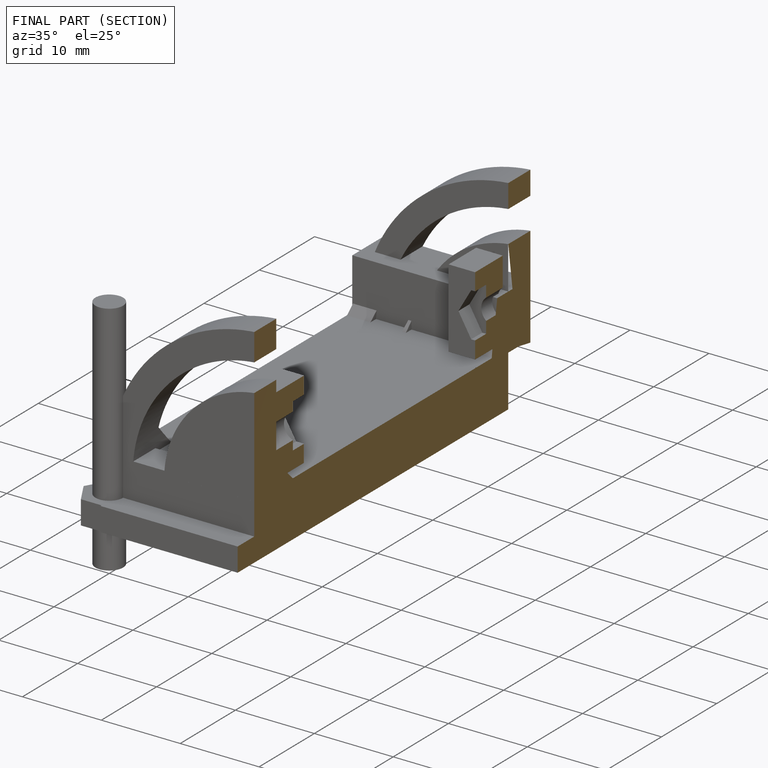
[diagram: finished part — half-section view (interior)]
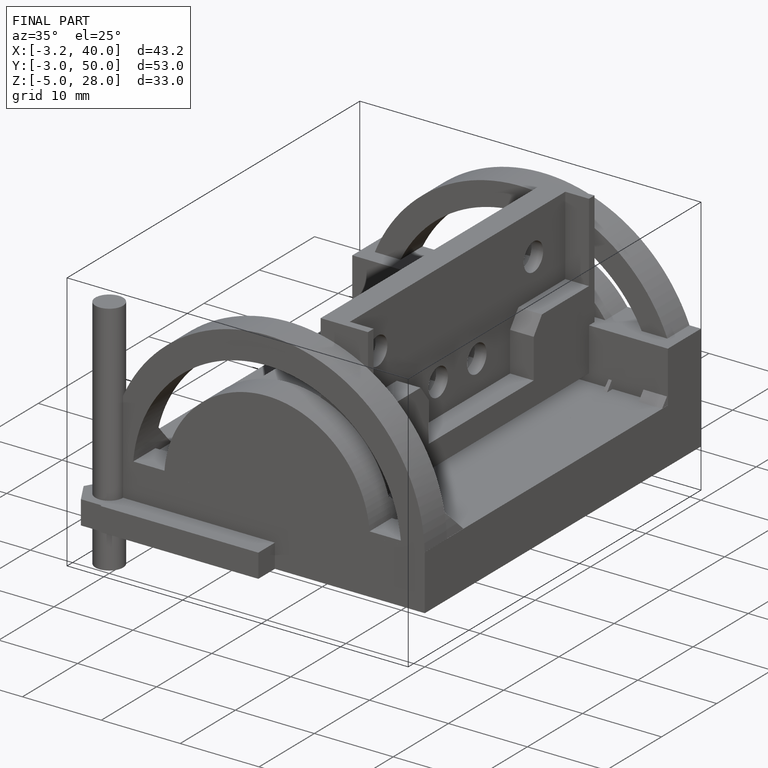
[diagram: finished part — iso view with bounding-box wireframe]
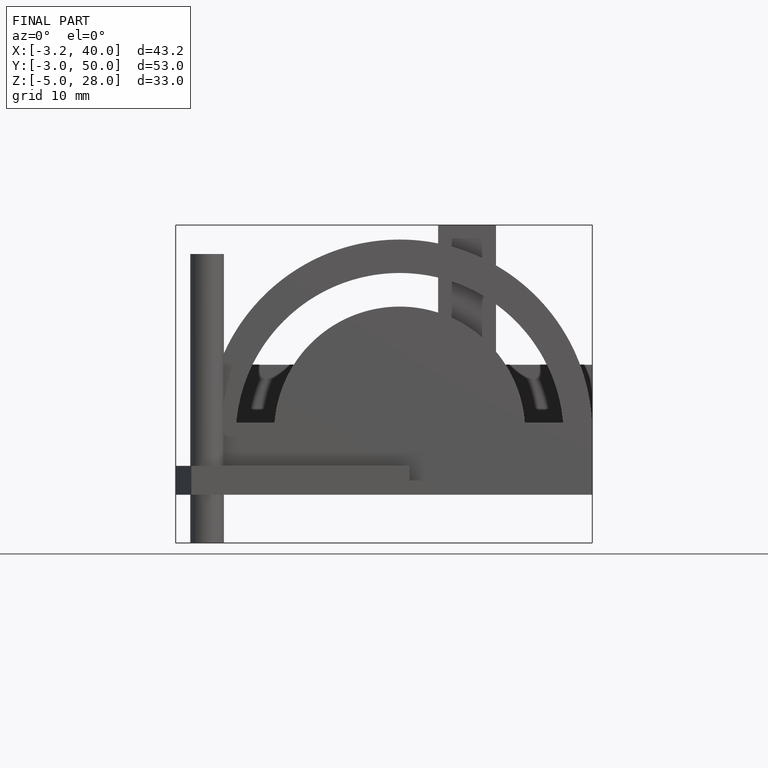
[diagram: finished part — front view with bounding-box wireframe]
